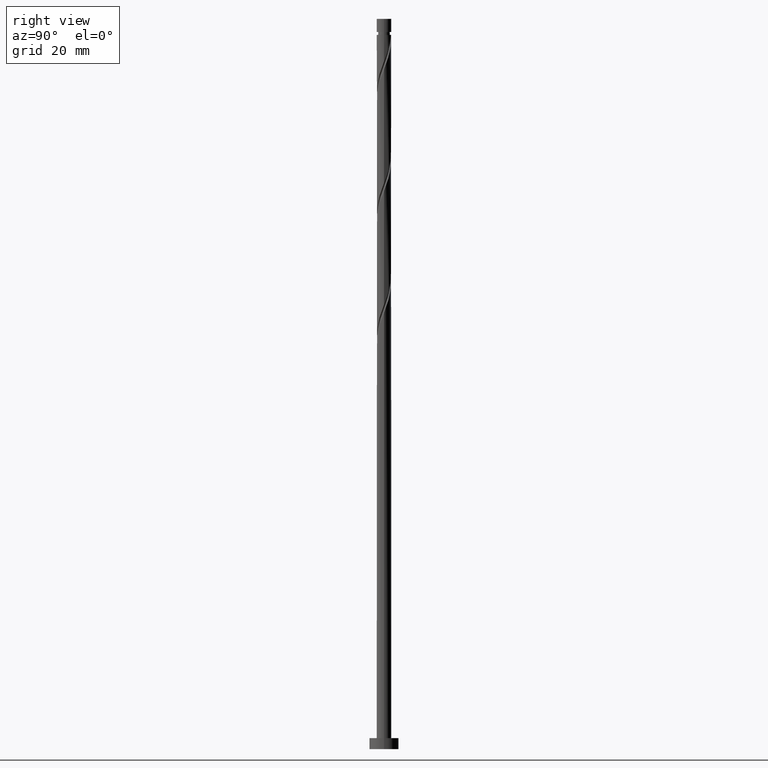
[diagram: clean part render]
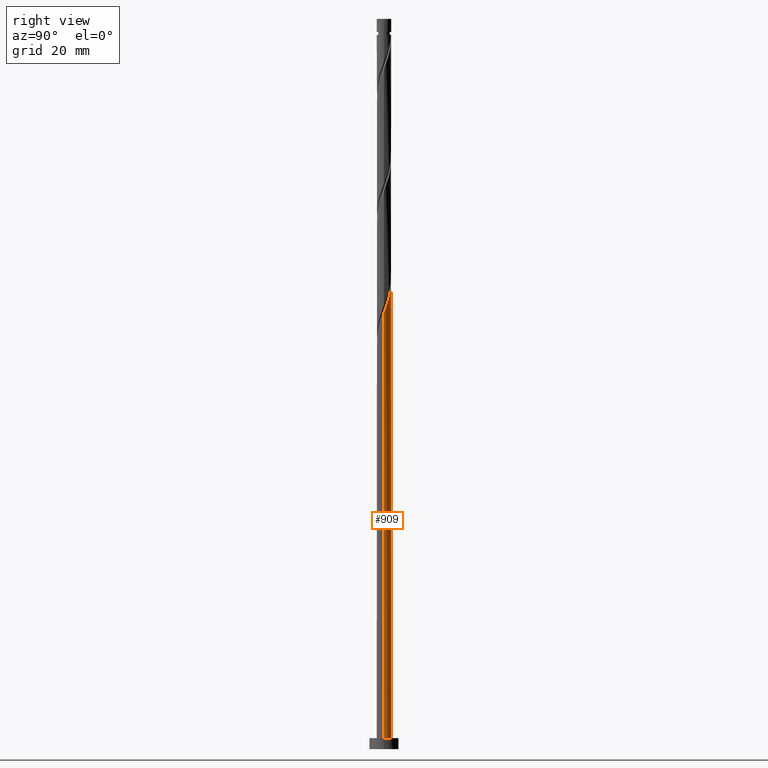
[diagram: same view with one face highlighted and labeled with its STEP entity id]
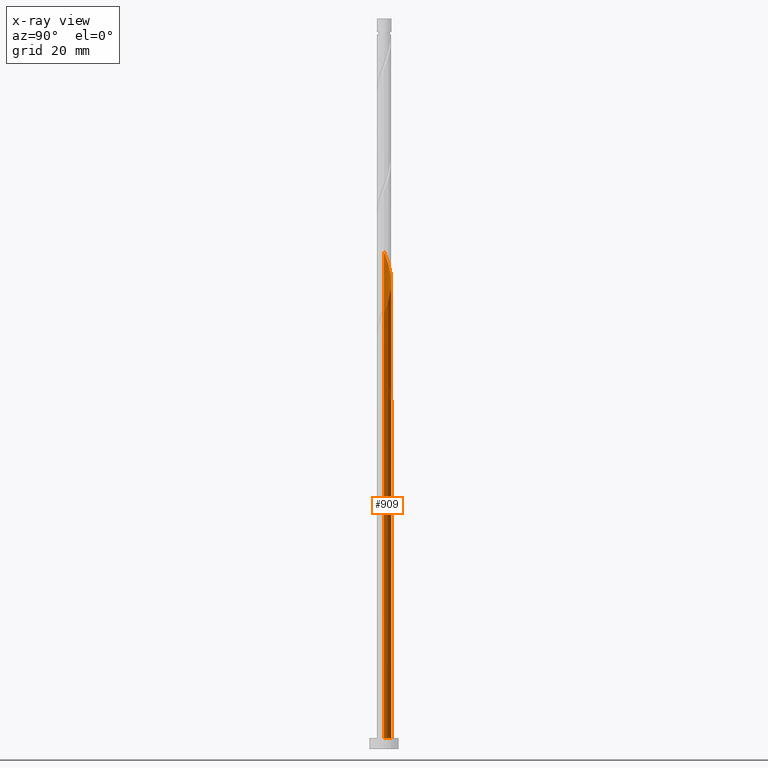
[diagram: x-ray of the same camera — body ghosted, the highlighted face saturated]
A machine part, right view. The second image highlights one B-rep face of the part: STEP entity #909.
The next image is the same camera in x-ray: the body ghosted, the highlighted face saturated — about 0% of this face is hidden behind the body in this view.
In plain terms, the highlighted cylindrical surface (edge-blend (fillet) strip) has radius 2 mm, axis along (-0, -0, -1).
Its self-contained STEP definition (entity closure, byte-faithful):
#9 = CARTESIAN_POINT ( 'NONE',  ( -2.000000000000001776, -2.362697942091940289E-15, 102.8871248648792260 ) ) ;
#19 = CARTESIAN_POINT ( 'NONE',  ( 0.000000000000000000, 0.000000000000000000, 200.0000000000000000 ) ) ;
#76 = CARTESIAN_POINT ( 'NONE',  ( 2.000000000000000000, 2.449293598294706414E-16, 3.000000000000000000 ) ) ;
#102 = VERTEX_POINT ( 'NONE', #589 ) ;
#117 = CARTESIAN_POINT ( 'NONE',  ( -1.996223298870951623, 0.1228517034671582908, 135.8951359645336936 ) ) ;
#126 = DIRECTION ( 'NONE',  ( -1.000000000000000000, 0.000000000000000000, 0.000000000000000000 ) ) ;
#135 = CARTESIAN_POINT ( 'NONE',  ( -2.000000000000002220, 0.06148390331534726860, 102.7239611768510770 ) ) ;
#147 = VECTOR ( 'NONE', #518, 1000.000000000000000 ) ;
#186 = EDGE_LOOP ( 'NONE', ( #325, #1187, #1311, #895, #552, #419, #192, #319 ) ) ;
#189 = CARTESIAN_POINT ( 'NONE',  ( -1.324015695162686690, 1.521943481029063072, 100.4784692978670790 ) ) ;
#192 = ORIENTED_EDGE ( 'NONE', *, *, #1257, .F. ) ;
#206 = VECTOR ( 'NONE', #376, 1000.000000000000000 ) ;
#207 = CARTESIAN_POINT ( 'NONE',  ( -0.6560338701139458717, 1.907602967534734129, 129.6451359645337220 ) ) ;
#215 = CARTESIAN_POINT ( 'NONE',  ( -1.127404036555503142, 1.672808912829664374, 97.70069152008927915 ) ) ;
#225 = CARTESIAN_POINT ( 'NONE',  ( -1.127404036555503142, 1.672808912829664374, 131.0340248534226362 ) ) ;
#233 = CARTESIAN_POINT ( 'NONE',  ( -2.000000000000001776, 0.06148390331534394487, 136.0572945101843914 ) ) ;
#236 = CARTESIAN_POINT ( 'NONE',  ( -1.790205940182196587, 0.8917189533347240626, 102.5618026312004218 ) ) ;
#244 = CARTESIAN_POINT ( 'NONE',  ( -1.498412303996174311, 1.324673758792282996, 101.1729137423115361 ) ) ;
#262 = CARTESIAN_POINT ( 'NONE',  ( -2.000000000000000000, 0.000000000000000000, 200.0000000000000000 ) ) ;
#283 = CARTESIAN_POINT ( 'NONE',  ( 0.000000000000000000, 0.000000000000000000, 3.000000000000000000 ) ) ;
#319 = ORIENTED_EDGE ( 'NONE', *, *, #1676, .F. ) ;
#325 = ORIENTED_EDGE ( 'NONE', *, *, #378, .F. ) ;
#332 = CARTESIAN_POINT ( 'NONE',  ( -0.8849929959097648791, 1.812764992401016073, 99.08958040897817909 ) ) ;
#337 = CARTESIAN_POINT ( 'NONE',  ( -0.1399560795713515882, 2.012397032465269575, 128.2562470756448647 ) ) ;
#349 = CARTESIAN_POINT ( 'NONE',  ( -0.8917189533347243957, 1.790205940182199251, 97.00624707564485050 ) ) ;
#359 = CARTESIAN_POINT ( 'NONE',  ( -0.8917189533347243957, 1.790205940182199251, 130.3395804089781791 ) ) ;
#376 = DIRECTION ( 'NONE',  ( -0.000000000000000000, -0.000000000000000000, -1.000000000000000000 ) ) ;
#378 = EDGE_CURVE ( 'NONE', #102, #1505, #1549, .T. ) ;
#382 = VERTEX_POINT ( 'NONE', #1452 ) ;
#389 = FACE_OUTER_BOUND ( 'NONE', #186, .T. ) ;
#402 = CARTESIAN_POINT ( 'NONE',  ( -1.996223298870951623, 0.1228517034671582908, 102.5618026312003934 ) ) ;
#411 = CARTESIAN_POINT ( 'NONE',  ( -1.980049565276635226, 0.3856594865056693355, 101.8673581867559648 ) ) ;
#419 = ORIENTED_EDGE ( 'NONE', *, *, #1032, .T. ) ;
#442 = CIRCLE ( 'NONE', #1557, 2.000000000000000000 ) ;
#461 = VERTEX_POINT ( 'NONE', #661 ) ;
#465 = CARTESIAN_POINT ( 'NONE',  ( -0.1228517034671573749, 1.996223298870949847, 97.00624707564486471 ) ) ;
#488 = CARTESIAN_POINT ( 'NONE',  ( 0.6353262412077187449, 1.896407278838825761, 126.1729137423114935 ) ) ;
#489 = CARTESIAN_POINT ( 'NONE',  ( -1.324673758792284106, 1.498412303996176309, 98.39513596453372202 ) ) ;
#510 = CARTESIAN_POINT ( 'NONE',  ( -2.000000000000000000, 0.000000000000000000, 200.0000000000000000 ) ) ;
#512 = DIRECTION ( 'NONE',  ( -1.000000000000000000, 0.000000000000000000, 0.000000000000000000 ) ) ;
#518 = DIRECTION ( 'NONE',  ( -0.000000000000000000, -0.000000000000000000, -1.000000000000000000 ) ) ;
#526 = CARTESIAN_POINT ( 'NONE',  ( -1.896407278838825983, 0.6353262412077179677, 101.1729137423115219 ) ) ;
#552 = ORIENTED_EDGE ( 'NONE', *, *, #931, .F. ) ;
#581 = CARTESIAN_POINT ( 'NONE',  ( 1.498412303996177641, 1.324673758792282774, 123.3951359645337362 ) ) ;
#589 = CARTESIAN_POINT ( 'NONE',  ( 2.000000000000001776, 1.143964509936920445E-15, 119.5537915315458690 ) ) ;
#606 = VERTEX_POINT ( 'NONE', #76 ) ;
#612 = CARTESIAN_POINT ( 'NONE',  ( 1.960000000000001741, 0.3979949748426492850, 120.6173581867559363 ) ) ;
#624 = AXIS2_PLACEMENT_3D ( 'NONE', #19, #752, #512 ) ;
#644 = VERTEX_POINT ( 'NONE', #9 ) ;
#661 = CARTESIAN_POINT ( 'NONE',  ( -0.3979949748426492850, 1.960000000000002185, 95.61735818675595056 ) ) ;
#720 = CARTESIAN_POINT ( 'NONE',  ( 1.790205940182199695, 0.8917189533347237296, 122.0062470756448221 ) ) ;
#724 = CARTESIAN_POINT ( 'NONE',  ( -1.672808912829662153, 1.127404036555502254, 101.8673581867559932 ) ) ;
#733 = CARTESIAN_POINT ( 'NONE',  ( 0.3979949748426499512, 1.959999999999999520, 95.61735818675595056 ) ) ;
#741 = CARTESIAN_POINT ( 'NONE',  ( -0.3979949748426492850, 1.960000000000002185, 95.61735818675595056 ) ) ;
#750 = CARTESIAN_POINT ( 'NONE',  ( 2.000000000000002665, 0.2010075630518397272, 120.0872179007351832 ) ) ;
#752 = DIRECTION ( 'NONE',  ( -0.000000000000000000, -0.000000000000000000, -1.000000000000000000 ) ) ;
#769 = CARTESIAN_POINT ( 'NONE',  ( -2.000000000000001776, -2.362697942091939895E-15, 136.2204581982125546 ) ) ;
#770 = CARTESIAN_POINT ( 'NONE',  ( 0.3979949748426500067, 1.959999999999999520, 95.61735818675595056 ) ) ;
#785 = CARTESIAN_POINT ( 'NONE',  ( -1.980049565276635226, 0.3856594865056693355, 135.2006915200892649 ) ) ;
#786 = CARTESIAN_POINT ( 'NONE',  ( 2.000000000000000000, 2.449293598294706414E-16, 200.0000000000000000 ) ) ;
#820 = DIRECTION ( 'NONE',  ( 0.000000000000000000, 0.000000000000000000, 1.000000000000000000 ) ) ;
#843 = CIRCLE ( 'NONE', #1240, 2.000000000000000000 ) ;
#874 = LINE ( 'NONE', #786, #147 ) ;
#880 = CARTESIAN_POINT ( 'NONE',  ( 1.907602967534734795, 0.6560338701139455386, 121.3118026312003934 ) ) ;
#885 = CARTESIAN_POINT ( 'NONE',  ( -1.907602967534731686, 0.6560338701139455386, 103.2562470756448647 ) ) ;
#895 = ORIENTED_EDGE ( 'NONE', *, *, #1595, .F. ) ;
#908 = LINE ( 'NONE', #510, #1723 ) ;
#909 = ADVANCED_FACE ( 'NONE', ( #389 ), #1233, .T. ) ;
#917 = CARTESIAN_POINT ( 'NONE',  ( -0.6353262412077164134, 1.896407278838824428, 98.39513596453377886 ) ) ;
#925 = CARTESIAN_POINT ( 'NONE',  ( -1.521943481029065071, 1.324015695162689576, 132.4229137423114935 ) ) ;
#931 = EDGE_CURVE ( 'NONE', #461, #644, #1376, .T. ) ;
#933 = CARTESIAN_POINT ( 'NONE',  ( -1.667354236715041793, 1.104504345536227561, 133.1173581867559221 ) ) ;
#1000 = CARTESIAN_POINT ( 'NONE',  ( 1.324015695162690021, 1.521943481029063960, 124.0895804089781791 ) ) ;
#1011 = CARTESIAN_POINT ( 'NONE',  ( -1.999999999999999556, 3.334693930927256533E-15, 105.0142581752993749 ) ) ;
#1023 = CARTESIAN_POINT ( 'NONE',  ( 0.3856594865056705568, 1.980049565276635226, 126.8673581867559363 ) ) ;
#1024 = CARTESIAN_POINT ( 'NONE',  ( -1.521943481029065071, 1.324015695162689576, 99.08958040897816488 ) ) ;
#1032 = EDGE_CURVE ( 'NONE', #461, #1269, #442, .T. ) ;
#1047 = LINE ( 'NONE', #262, #206 ) ;
#1126 = CARTESIAN_POINT ( 'NONE',  ( 0.8849929959097670995, 1.812764992401018072, 125.4784692978670506 ) ) ;
#1152 = CARTESIAN_POINT ( 'NONE',  ( 0.000000000000000000, 0.000000000000000000, 95.61735818675596477 ) ) ;
#1153 = CARTESIAN_POINT ( 'NONE',  ( 1.104504345536228227, 1.667354236715041571, 124.7840248534226077 ) ) ;
#1172 = CARTESIAN_POINT ( 'NONE',  ( -1.104504345536226229, 1.667354236715039351, 99.78402485342265038 ) ) ;
#1187 = ORIENTED_EDGE ( 'NONE', *, *, #1334, .T. ) ;
#1229 = EDGE_CURVE ( 'NONE', #606, #1464, #843, .T. ) ;
#1233 = CYLINDRICAL_SURFACE ( 'NONE', #624, 2.000000000000000000 ) ;
#1240 = AXIS2_PLACEMENT_3D ( 'NONE', #283, #820, #1430 ) ;
#1257 = EDGE_CURVE ( 'NONE', #382, #1269, #1628, .T. ) ;
#1267 = CARTESIAN_POINT ( 'NONE',  ( -2.000000000000000000, 0.2010075630518423084, 104.4808318061100749 ) ) ;
#1269 = VERTEX_POINT ( 'NONE', #733 ) ;
#1282 = CARTESIAN_POINT ( 'NONE',  ( -0.6560338701139458717, 1.907602967534734129, 96.31180263120039342 ) ) ;
#1302 = CARTESIAN_POINT ( 'NONE',  ( -2.000000000000000000, 0.000000000000000000, 3.000000000000000000 ) ) ;
#1309 = CARTESIAN_POINT ( 'NONE',  ( -1.959999999999999520, 0.3979949748426496181, 103.9506915200892934 ) ) ;
#1311 = ORIENTED_EDGE ( 'NONE', *, *, #1229, .T. ) ;
#1318 = CARTESIAN_POINT ( 'NONE',  ( -0.3856594865056685029, 1.980049565276632118, 97.70069152008932178 ) ) ;
#1324 = CARTESIAN_POINT ( 'NONE',  ( -1.324673758792284106, 1.498412303996176309, 131.7284692978670648 ) ) ;
#1334 = EDGE_CURVE ( 'NONE', #102, #606, #874, .T. ) ;
#1338 = CARTESIAN_POINT ( 'NONE',  ( -1.667354236715041793, 1.104504345536227561, 99.78402485342260775 ) ) ;
#1376 =( BOUNDED_CURVE ( )  B_SPLINE_CURVE ( 2, ( #741, #1282, #349, #215, #489, #1024, #1338, #1729, #526, #411, #402, #135, #1471 ),
 .UNSPECIFIED., .F., .T. ) 
 B_SPLINE_CURVE_WITH_KNOTS ( ( 3, 2, 2, 2, 2, 2, 3 ),
 ( 0.000000000000000000, 0.01041666666666662966, 0.02083333333333337034, 0.03125000000000000000, 0.04166666666666662966, 0.05208333333333336340, 0.05453176698144627382 ),
 .UNSPECIFIED. ) 
 CURVE ( )  GEOMETRIC_REPRESENTATION_ITEM ( )  RATIONAL_B_SPLINE_CURVE ( ( 0.9090909090909370383, 0.9013135103398551840, 0.9090909090909370383, 0.9013135103398551840, 0.9090909090909370383, 0.9013135103398551840, 0.9090909090909370383, 0.9013135103398551840, 0.9090909090909370383, 0.9013135103398551840, 0.9090909090909370383, 0.9072628343904306503, 0.9062941362546571566 ) ) 
 REPRESENTATION_ITEM ( '' )  );
#1398 = CARTESIAN_POINT ( 'NONE',  ( 2.000000000000001776, 1.143964509936920445E-15, 119.5537915315458690 ) ) ;
#1423 = CARTESIAN_POINT ( 'NONE',  ( 1.672808912829665484, 1.127404036555502032, 122.7006915200892792 ) ) ;
#1430 = DIRECTION ( 'NONE',  ( 1.000000000000000000, 0.000000000000000000, 0.000000000000000000 ) ) ;
#1452 = CARTESIAN_POINT ( 'NONE',  ( -1.999999999999999556, 3.334693930927256533E-15, 105.0142581752993749 ) ) ;
#1458 = CARTESIAN_POINT ( 'NONE',  ( -1.896407278838825983, 0.6353262412077179677, 134.5062470756448363 ) ) ;
#1464 = VERTEX_POINT ( 'NONE', #1302 ) ;
#1470 = CARTESIAN_POINT ( 'NONE',  ( -1.812764992401018294, 0.8849929959097664334, 133.8118026312004076 ) ) ;
#1471 = CARTESIAN_POINT ( 'NONE',  ( -2.000000000000001776, -2.362697942091939895E-15, 102.8871248648792260 ) ) ;
#1505 = VERTEX_POINT ( 'NONE', #1675 ) ;
#1549 =( BOUNDED_CURVE ( )  B_SPLINE_CURVE ( 2, ( #1398, #750, #612, #880, #720, #1423, #581, #1000, #1153, #1126, #488, #1023, #1665, #337, #1556, #207, #359, #225, #1324, #925, #933, #1470, #1458, #785, #117, #233, #769 ),
 .UNSPECIFIED., .F., .T. ) 
 B_SPLINE_CURVE_WITH_KNOTS ( ( 3, 2, 2, 2, 2, 2, 2, 2, 2, 2, 2, 2, 2, 3 ),
 ( 0.1795317669814462114, 0.1875000000000000000, 0.1979166666666666297, 0.2083333333333333703, 0.2187500000000000000, 0.2291666666666666297, 0.2395833333333333703, 0.2500000000000000000, 0.2604166666666666297, 0.2708333333333333703, 0.2812500000000000000, 0.2916666666666666297, 0.3020833333333333703, 0.3045317669814464057 ),
 .UNSPECIFIED. ) 
 CURVE ( )  GEOMETRIC_REPRESENTATION_ITEM ( )  RATIONAL_B_SPLINE_CURVE ( ( 0.9062941362546572677, 0.9031415850403613499, 0.9090909090909370383, 0.9013135103398551840, 0.9090909090909370383, 0.9013135103398551840, 0.9090909090909370383, 0.9013135103398551840, 0.9090909090909370383, 0.9013135103398551840, 0.9090909090909370383, 0.9013135103398551840, 0.9090909090909370383, 0.9013135103398551840, 0.9090909090909370383, 0.9013135103398551840, 0.9090909090909370383, 0.9013135103398551840, 0.9090909090909370383, 0.9013135103398551840, 0.9090909090909370383, 0.9013135103398551840, 0.9090909090909370383, 0.9013135103398551840, 0.9090909090909370383, 0.9072628343904306503, 0.9062941362546571566 ) ) 
 REPRESENTATION_ITEM ( '' )  );
#1555 = DIRECTION ( 'NONE',  ( 0.000000000000000000, -0.000000000000000000, -1.000000000000000000 ) ) ;
#1556 = CARTESIAN_POINT ( 'NONE',  ( -0.3979949748426491740, 1.960000000000001741, 128.9506915200892934 ) ) ;
#1557 = AXIS2_PLACEMENT_3D ( 'NONE', #1152, #1555, #126 ) ;
#1595 = EDGE_CURVE ( 'NONE', #644, #1464, #908, .T. ) ;
#1628 =( BOUNDED_CURVE ( )  B_SPLINE_CURVE ( 2, ( #1011, #1267, #1309, #885, #236, #724, #244, #189, #1172, #332, #917, #1318, #465, #1709, #770 ),
 .UNSPECIFIED., .F., .T. ) 
 B_SPLINE_CURVE_WITH_KNOTS ( ( 3, 2, 2, 2, 2, 2, 2, 3 ),
 ( 0.9295317669814462391, 0.9375000000000000000, 0.9479166666666666297, 0.9583333333333333703, 0.9687500000000000000, 0.9791666666666666297, 0.9895833333333333703, 1.000000000000000000 ),
 .UNSPECIFIED. ) 
 CURVE ( )  GEOMETRIC_REPRESENTATION_ITEM ( )  RATIONAL_B_SPLINE_CURVE ( ( 0.9062941362546507174, 0.9031415850403550216, 0.9090909090909303769, 0.9013135103398488557, 0.9090909090909303769, 0.9013135103398488557, 0.9090909090909303769, 0.9013135103398488557, 0.9090909090909303769, 0.9013135103398488557, 0.9090909090909303769, 0.9013135103398488557, 0.9090909090909303769, 0.9013135103398488557, 0.9090909090909303769 ) ) 
 REPRESENTATION_ITEM ( '' )  );
#1665 = CARTESIAN_POINT ( 'NONE',  ( 0.1228517034671594843, 1.996223298870951846, 127.5618026312003934 ) ) ;
#1675 = CARTESIAN_POINT ( 'NONE',  ( -2.000000000000001776, -2.362697942091940289E-15, 136.2204581982125546 ) ) ;
#1676 = EDGE_CURVE ( 'NONE', #1505, #382, #1047, .T. ) ;
#1709 = CARTESIAN_POINT ( 'NONE',  ( 0.1399560795713536976, 2.012397032465266467, 96.31180263120040763 ) ) ;
#1723 = VECTOR ( 'NONE', #1750, 1000.000000000000000 ) ;
#1729 = CARTESIAN_POINT ( 'NONE',  ( -1.812764992401018294, 0.8849929959097664334, 100.4784692978670648 ) ) ;
#1750 = DIRECTION ( 'NONE',  ( -0.000000000000000000, -0.000000000000000000, -1.000000000000000000 ) ) ;